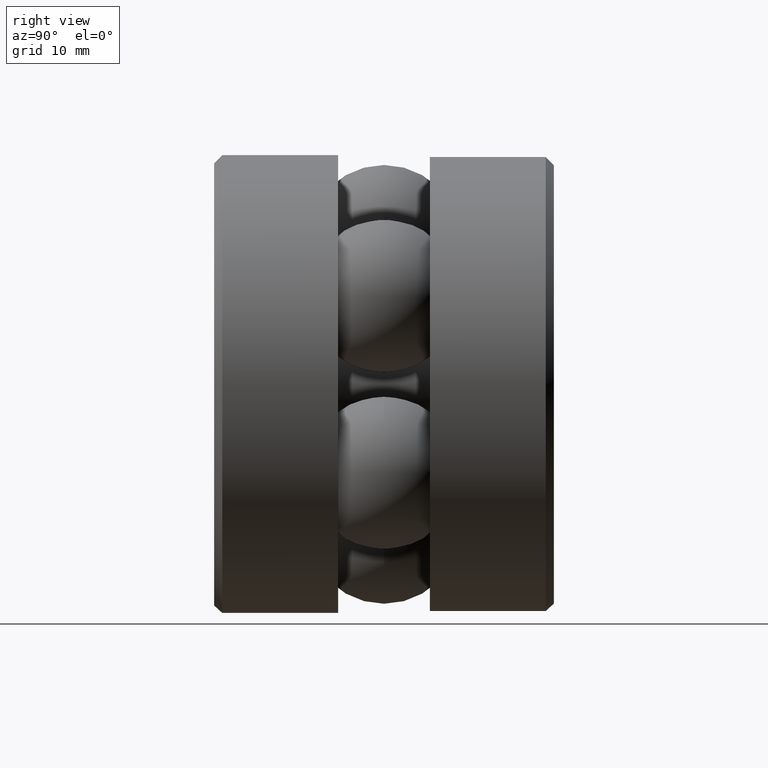
[diagram: clean part render]
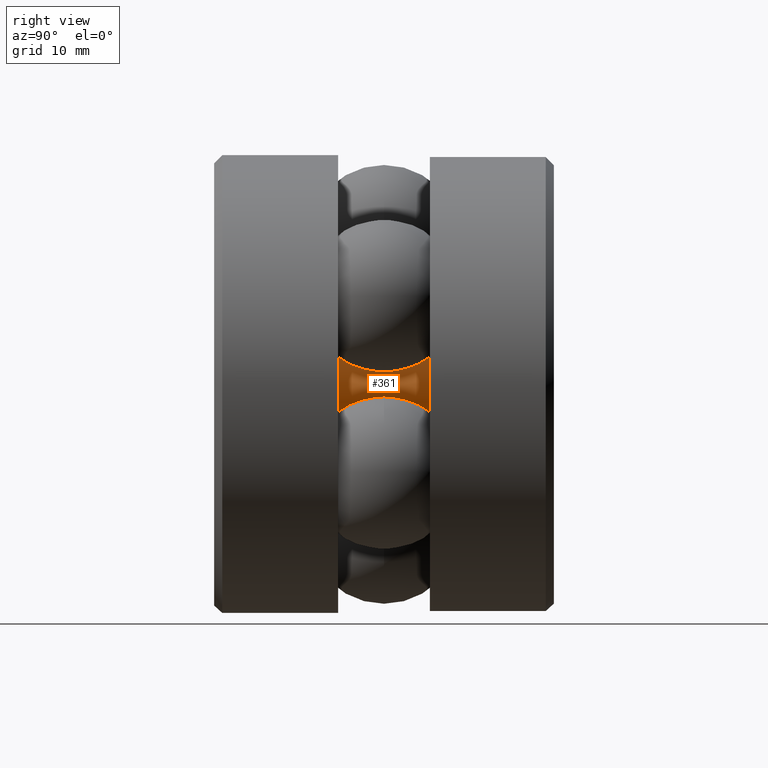
[diagram: same view with one face highlighted and labeled with its STEP entity id]
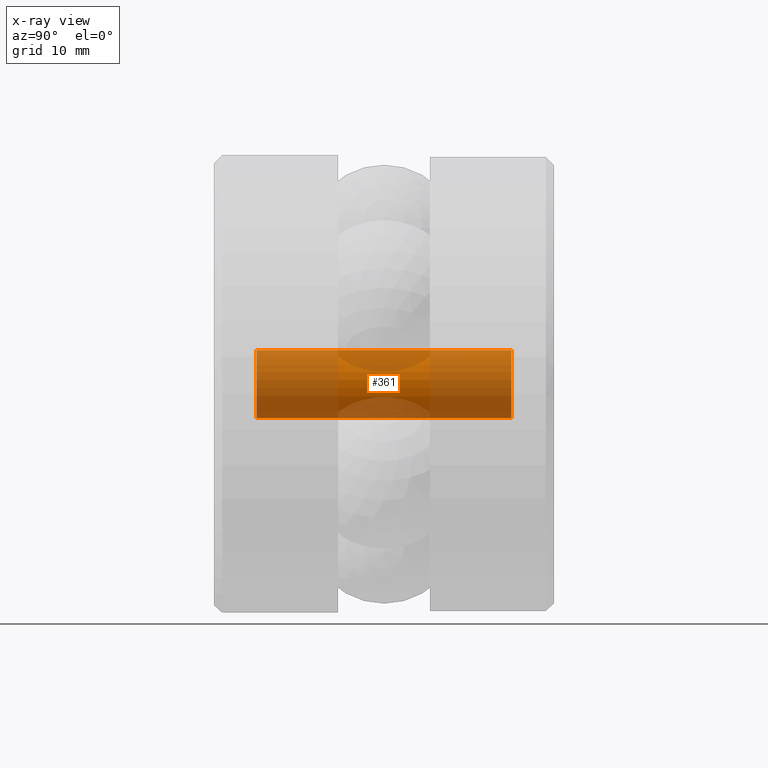
[diagram: x-ray of the same camera — body ghosted, the highlighted face saturated]
A machine part, right view. The second image highlights one B-rep face of the part: STEP entity #361.
The next image is the same camera in x-ray: the body ghosted, the highlighted face saturated — about 81% of this face is hidden behind the body in this view.
In plain terms, the highlighted cylindrical surface (bore or boss wall) has radius 3.175 mm, axis along (-0, 1, -0).
Its self-contained STEP definition (entity closure, byte-faithful):
#15 = FACE_OUTER_BOUND ( 'NONE', #168, .T. ) ;
#67 = EDGE_LOOP ( 'NONE', ( #101 ) ) ;
#83 = CIRCLE ( 'NONE', #127, 0.1250000000000001900 ) ;
#96 = DIRECTION ( 'NONE',  ( 0.0000000000000000000, 0.0000000000000000000, 1.000000000000000000 ) ) ;
#101 = ORIENTED_EDGE ( 'NONE', *, *, #441, .F. ) ;
#107 = DIRECTION ( 'NONE',  ( -0.0000000000000000000, 1.000000000000000000, -0.0000000000000000000 ) ) ;
#112 = VERTEX_POINT ( 'NONE', #253 ) ;
#116 = CARTESIAN_POINT ( 'NONE',  ( 0.0000000000000000000, 1.093750000000000000, 0.0000000000000000000 ) ) ;
#122 = CYLINDRICAL_SURFACE ( 'NONE', #494, 0.1250000000000001100 ) ;
#127 = AXIS2_PLACEMENT_3D ( 'NONE', #116, #107, #96 ) ;
#136 = AXIS2_PLACEMENT_3D ( 'NONE', #224, #195, #330 ) ;
#139 = FACE_OUTER_BOUND ( 'NONE', #67, .T. ) ;
#168 = EDGE_LOOP ( 'NONE', ( #213 ) ) ;
#195 = DIRECTION ( 'NONE',  ( -0.0000000000000000000, 1.000000000000000000, -0.0000000000000000000 ) ) ;
#213 = ORIENTED_EDGE ( 'NONE', *, *, #260, .T. ) ;
#224 = CARTESIAN_POINT ( 'NONE',  ( 0.0000000000000000000, 0.1562499999999999700, 0.0000000000000000000 ) ) ;
#253 = CARTESIAN_POINT ( 'NONE',  ( 0.0000000000000000000, 1.093750000000000000, 0.1250000000000001900 ) ) ;
#255 = DIRECTION ( 'NONE',  ( 0.0000000000000000000, 0.0000000000000000000, 1.000000000000000000 ) ) ;
#260 = EDGE_CURVE ( 'NONE', #368, #368, #498, .T. ) ;
#307 = CARTESIAN_POINT ( 'NONE',  ( 0.0000000000000000000, 0.0000000000000000000, 0.0000000000000000000 ) ) ;
#330 = DIRECTION ( 'NONE',  ( 0.0000000000000000000, 0.0000000000000000000, 1.000000000000000000 ) ) ;
#361 = ADVANCED_FACE ( 'NONE', ( #15, #139 ), #122, .T. ) ;
#368 = VERTEX_POINT ( 'NONE', #539 ) ;
#404 = DIRECTION ( 'NONE',  ( -0.0000000000000000000, 1.000000000000000000, -0.0000000000000000000 ) ) ;
#441 = EDGE_CURVE ( 'NONE', #112, #112, #83, .T. ) ;
#494 = AXIS2_PLACEMENT_3D ( 'NONE', #307, #404, #255 ) ;
#498 = CIRCLE ( 'NONE', #136, 0.1250000000000000300 ) ;
#539 = CARTESIAN_POINT ( 'NONE',  ( 0.0000000000000000000, 0.1562499999999999700, 0.1250000000000000300 ) ) ;